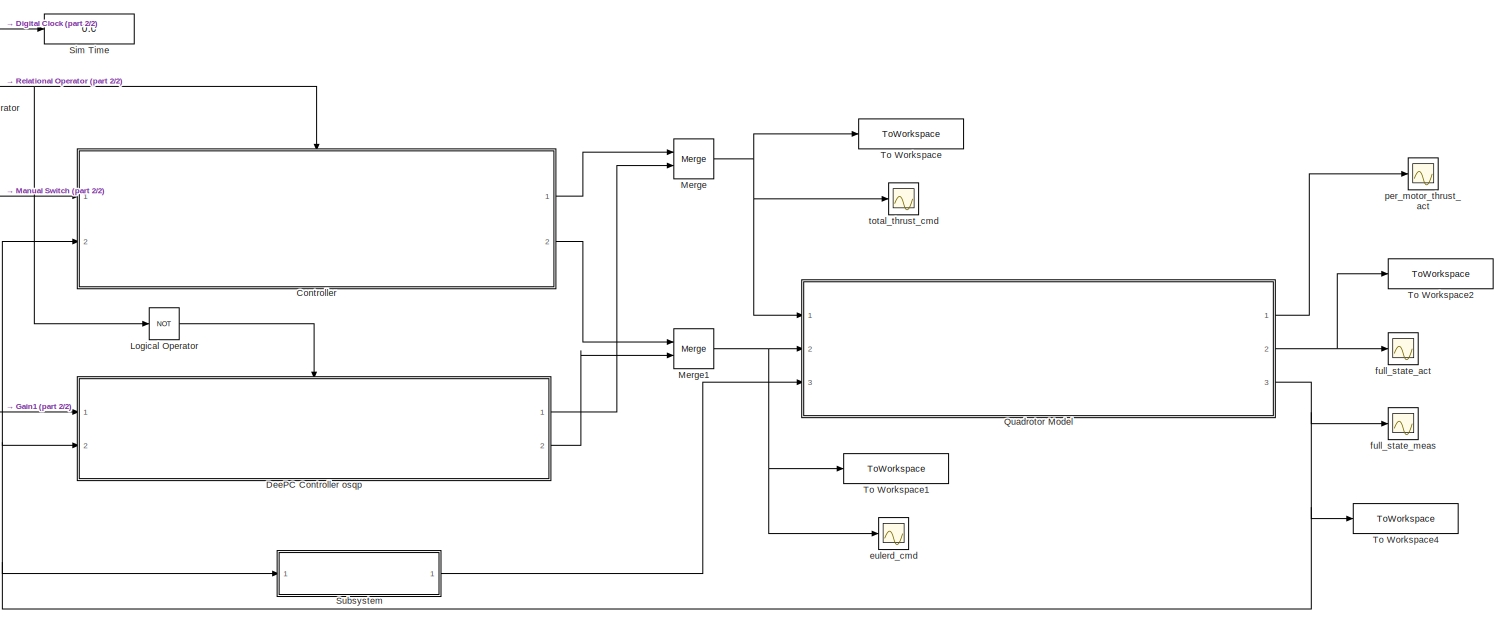
[diagram: root canvas - part 1/2, center side, full height]
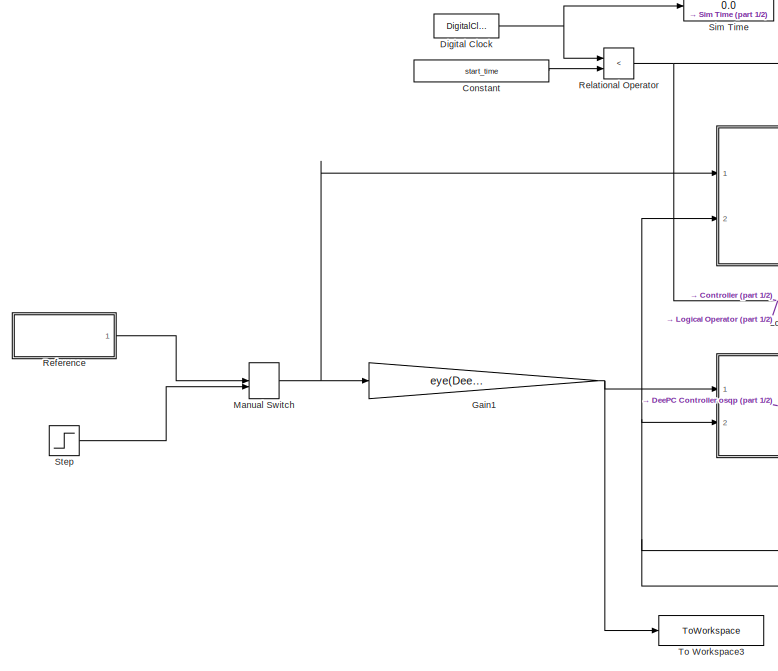
[diagram: root canvas - part 2/2, left side, full height]
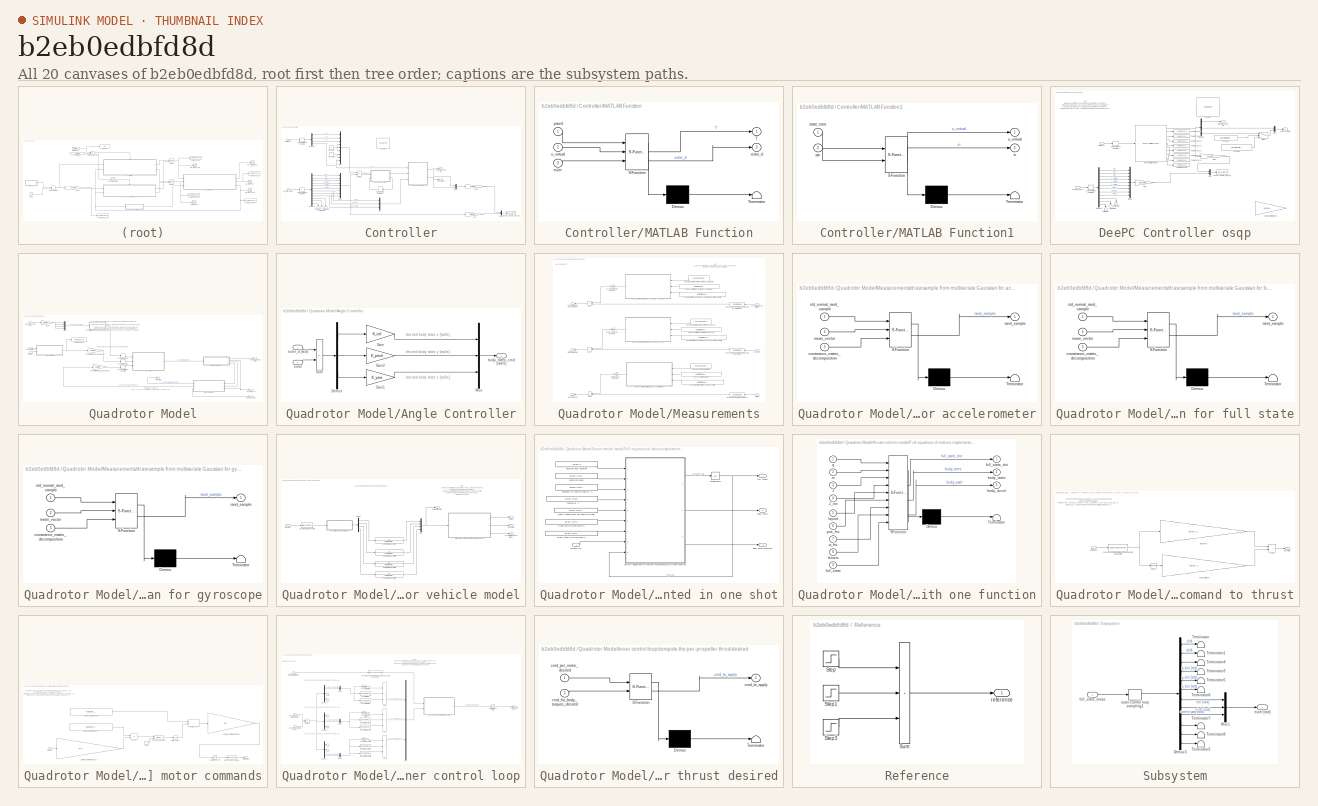
[diagram: thumbnail index - all 20 canvases of the model, root first then tree order]
MODEL slx_b2eb0edbfd8d
KIND model
CONFIG AbsTol = auto
CONFIG EnableMultiTasking = off
CONFIG FixedStep = auto
CONFIG MaxStep = auto
CONFIG MinStep = auto
CONFIG RelTol = 1e-3
CONFIG SampleTimeConstraint = Unconstrained
CONFIG SolverName = VariableStepAuto
CONFIG StartTime = 0.0
CONFIG StopTime = sim_time
BLOCK [Constant] Constant
  Value = start_time
BLOCK [SubSystem] Controller
  AncestorBlock = Crazyflie_Library/LQR_Controller
  Ports = [2, 2, 1]
  RequestExecContextInheritance = off
BLOCK [Constant] Controller/Constant
  Value = 0
BLOCK [Constant] Controller/Constant2
  Value = 0
BLOCK [MATLABFcn] Controller/DeePC_update_uini_yini
  MATLABFcn = DeePC_update_uini_yini
  OutputDimensions = 0
  Ports = [1]
BLOCK [Demux] Controller/Demux2
  Ports = [1, 4]
BLOCK [Demux] Controller/Demux3
  Outputs = 12
  Ports = [1, 12]
BLOCK [DiscreteIntegrator] Controller/Discrete-Time Integrator
  ICPrevOutput = DiscIntNeverNeededParam
  ICPrevScaledInput = DiscIntNeverNeededParam
  InitialCondition = [0;0;0]
  InitialConditionSetting = Auto
  NameLocation = top
  Ports = [1, 1]
  SampleTime = -1
BLOCK [EnablePort] Controller/Enable
  Ports = []
BLOCK [Gain] Controller/Gain
  Gain = param.Cd
  Multiplication = Matrix(K*u)
BLOCK [Gain] Controller/Gain1
  Gain = eye(param.m, 4)
  Multiplication = Matrix(K*u)
BLOCK [SubSystem] Controller/MATLAB Function
  ErrorFcn = Stateflow.Translate.translate
  PermitHierarchicalResolution = ExplicitOnly
  Ports = [3, 2]
  RequestExecContextInheritance = off
  SFBlockType = MATLAB Function
  TreatAsAtomicUnit = on
BLOCK [Demux] Controller/MATLAB Function/ Demux 
  Outputs = 1
  Ports = [1, 1]
BLOCK [S-Function] Controller/MATLAB Function/ SFunction 
  EnableBusSupport = on
  FunctionName = sf_sfun
  Parameters = accel_g,flag_input_transform_nonlinearity,mass
  PortCounts = [3 3]
  Ports = [3, 3]
  SFcnIsStateOwnerBlock = off
  SFunctionDeploymentMode = off
  Tag = Stateflow S-Function 6
BLOCK [Terminator] Controller/MATLAB Function/ Terminator 
BLOCK [Outport] Controller/MATLAB Function/T
BLOCK [Inport] Controller/MATLAB Function/euler
  Port = 3
BLOCK [Outport] Controller/MATLAB Function/euler_d
  Port = 2
BLOCK [Inport] Controller/MATLAB Function/u_virtual
  Port = 2
BLOCK [Inport] Controller/MATLAB Function/yawd
BLOCK [SubSystem] Controller/MATLAB Function1
  ErrorFcn = Stateflow.Translate.translate
  PermitHierarchicalResolution = ExplicitOnly
  Ports = [2, 2]
  RequestExecContextInheritance = off
  SFBlockType = MATLAB Function
  TreatAsAtomicUnit = on
BLOCK [Demux] Controller/MATLAB Function1/ Demux 
  Outputs = 1
  Ports = [1, 1]
BLOCK [S-Function] Controller/MATLAB Function1/ SFunction 
  EnableBusSupport = on
  FunctionName = sf_sfun
  Parameters = Ki_xy,Ki_z,Kp_xy,Kp_z,Kv_xy,Kv_z
  PortCounts = [2 3]
  Ports = [2, 3]
  SFcnIsStateOwnerBlock = off
  SFunctionDeploymentMode = off
  Tag = Stateflow S-Function 7
BLOCK [Terminator] Controller/MATLAB Function1/ Terminator 
BLOCK [Inport] Controller/MATLAB Function1/pp
  Port = 2
BLOCK [Inport] Controller/MATLAB Function1/state_error
BLOCK [Outport] Controller/MATLAB Function1/u_virtual
BLOCK [Outport] Controller/MATLAB Function1/xi
  Port = 2
BLOCK [Mux] Controller/Mux
  DisplayOption = bar
  Inputs = 3
  Ports = [3, 1]
BLOCK [Mux] Controller/Mux1
  DisplayOption = bar
  Inputs = 9
  Ports = [9, 1]
BLOCK [Mux] Controller/Mux10
  DisplayOption = bar
  Inputs = 2
  Ports = [2, 1]
BLOCK [Mux] Controller/Mux3
  DisplayOption = bar
  Inputs = 9
  Ports = [9, 1]
BLOCK [Mux] Controller/Mux9
  DisplayOption = bar
  Inputs = 2
  Ports = [2, 1]
BLOCK [Sum] Controller/Subtract
  IconShape = rectangular
  Inputs = +-
  Ports = [2, 1]
BLOCK [Terminator] Controller/Terminator
  NameLocation = left
BLOCK [Terminator] Controller/Terminator1
  NameLocation = left
BLOCK [Terminator] Controller/Terminator2
  NameLocation = left
BLOCK [Outport] Controller/euler_d [rad]
  Port = 2
BLOCK [Inport] Controller/full_state_meas
  Port = 2
BLOCK [ZeroOrderHold] Controller/outer control loop sampling
  SampleTime = param.sample_time_controller_outer
BLOCK [ZeroOrderHold] Controller/outer control loop sampling1
  SampleTime = param.sample_time_controller_outer
BLOCK [Inport] Controller/reference
BLOCK [Outport] Controller/total_thrust_cmd [N]
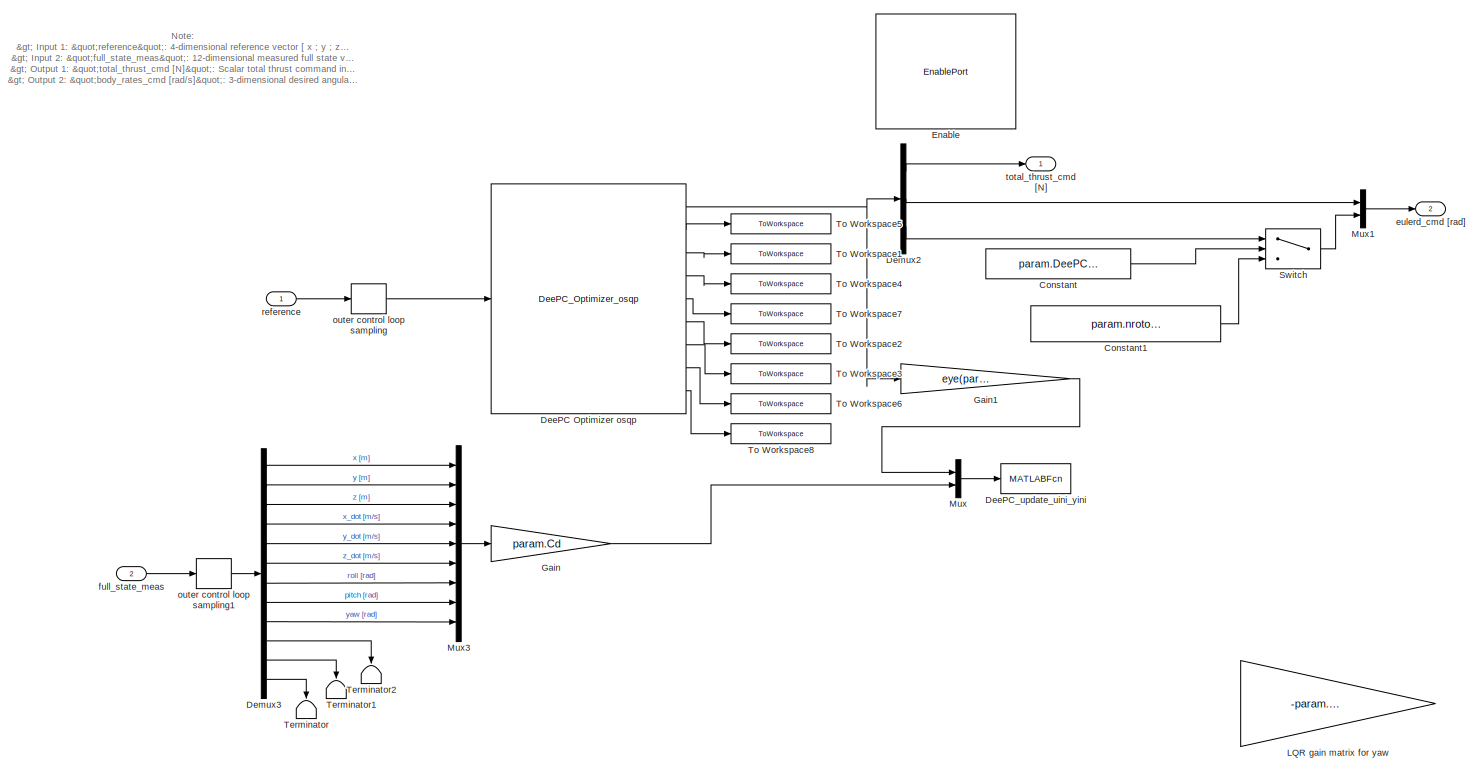
[diagram: DeePC Controller osqp - part 1/1, most of the canvas]
BLOCK [SubSystem] DeePC Controller osqp
  AncestorBlock = Crazyflie_Library/DeePC_Controller_osqp
  Ports = [2, 2, 1]
  RequestExecContextInheritance = off
BLOCK [Constant] DeePC Controller osqp/Constant
  Value = param.DeePC_yaw_control
BLOCK [Constant] DeePC Controller osqp/Constant1
  Value = param.nrotor_initial_condition(9)
BLOCK [Reference] DeePC Controller osqp/DeePC Optimizer osqp  REF=Crazyflie_Library/DeePC_Optimizer_osqp
  Ports = [1, 9]
  SourceBlock = Crazyflie_Library/DeePC_Optimizer_osqp
  SourceType = SubSystem
BLOCK [MATLABFcn] DeePC Controller osqp/DeePC_update_uini_yini
  MATLABFcn = DeePC_update_uini_yini
  OutputDimensions = 0
  Ports = [1]
BLOCK [Demux] DeePC Controller osqp/Demux2
  Outputs = [1 2 1]
  Ports = [1, 3]
BLOCK [Demux] DeePC Controller osqp/Demux3
  Outputs = 12
  Ports = [1, 12]
BLOCK [EnablePort] DeePC Controller osqp/Enable
  Ports = []
BLOCK [Gain] DeePC Controller osqp/Gain
  Gain = param.Cd
  Multiplication = Matrix(K*u)
BLOCK [Gain] DeePC Controller osqp/Gain1
  Gain = eye(param.m, 4)
  Multiplication = Matrix(K*u)
BLOCK [Gain] DeePC Controller osqp/LQR gain matrix for yaw
  Commented = on
  Gain = -param.K_lqr_outer_loop(4:9)
BLOCK [Mux] DeePC Controller osqp/Mux
  DisplayOption = bar
  Inputs = 2
  Ports = [2, 1]
BLOCK [Mux] DeePC Controller osqp/Mux1
  DisplayOption = bar
  Inputs = [2 1]
  Ports = [2, 1]
BLOCK [Mux] DeePC Controller osqp/Mux3
  DisplayOption = bar
  Inputs = 9
  Ports = [9, 1]
BLOCK [Switch] DeePC Controller osqp/Switch
  Criteria = u2 ~= 0
  InputSameDT = off
  SaturateOnIntegerOverflow = off
BLOCK [Terminator] DeePC Controller osqp/Terminator
  NameLocation = left
BLOCK [Terminator] DeePC Controller osqp/Terminator1
  NameLocation = left
BLOCK [Terminator] DeePC Controller osqp/Terminator2
  NameLocation = left
BLOCK [ToWorkspace] DeePC Controller osqp/To Workspace1
  FixptAsFi = on
  MaxDataPoints = inf
  Ports = [1]
  SampleTime = -1
  VariableName = sigma_out
BLOCK [ToWorkspace] DeePC Controller osqp/To Workspace2
  FixptAsFi = on
  MaxDataPoints = inf
  Ports = [1]
  SampleTime = -1
  VariableName = g_perf_out
BLOCK [ToWorkspace] DeePC Controller osqp/To Workspace3
  FixptAsFi = on
  MaxDataPoints = inf
  Ports = [1]
  SampleTime = -1
  VariableName = sigma_perf_out
BLOCK [ToWorkspace] DeePC Controller osqp/To Workspace4
  FixptAsFi = on
  MaxDataPoints = inf
  Ports = [1]
  SampleTime = -1
  VariableName = cost_out
BLOCK [ToWorkspace] DeePC Controller osqp/To Workspace5
  FixptAsFi = on
  MaxDataPoints = inf
  Ports = [1]
  SampleTime = -1
  VariableName = g_out
BLOCK [ToWorkspace] DeePC Controller osqp/To Workspace6
  FixptAsFi = on
  MaxDataPoints = inf
  Ports = [1]
  SampleTime = -1
  VariableName = cost_perf_out
BLOCK [ToWorkspace] DeePC Controller osqp/To Workspace7
  FixptAsFi = on
  MaxDataPoints = inf
  Ports = [1]
  SampleTime = -1
  VariableName = solve_time_out
BLOCK [ToWorkspace] DeePC Controller osqp/To Workspace8
  FixptAsFi = on
  MaxDataPoints = inf
  Ports = [1]
  SampleTime = -1
  VariableName = solve_time_perf_out
BLOCK [Outport] DeePC Controller osqp/eulerd_cmd [rad]
  Port = 2
  VectorParamsAs1DForOutWhenUnconnected = off
BLOCK [Inport] DeePC Controller osqp/full_state_meas
  Port = 2
BLOCK [ZeroOrderHold] DeePC Controller osqp/outer control loop sampling
  SampleTime = param.sample_time_controller_outer
BLOCK [ZeroOrderHold] DeePC Controller osqp/outer control loop sampling1
  SampleTime = param.sample_time_controller_outer
BLOCK [Inport] DeePC Controller osqp/reference
BLOCK [Outport] DeePC Controller osqp/total_thrust_cmd [N]
  VectorParamsAs1DForOutWhenUnconnected = off
BLOCK [DigitalClock] Digital Clock
  SampleTime = param.sample_time_controller_outer
BLOCK [Gain] Gain1
  Gain = eye(DeePC_param.Nref, 4)
  Multiplication = Matrix(K*u)
BLOCK [Logic] Logical Operator
  AllPortsSameDT = off
  Operator = NOT
  OutDataTypeStr = boolean
  Ports = [1, 1]
BLOCK [ManualSwitch] Manual Switch
  CurrentSetting = 0
BLOCK [Merge] Merge
  Ports = [2, 1]
BLOCK [Merge] Merge1
  Ports = [2, 1]
BLOCK [SubSystem] Quadrotor Model
  Ports = [3, 3]
  RequestExecContextInheritance = off
BLOCK [SubSystem] Quadrotor Model/Angle Controller
  Ports = [2, 1]
  RequestExecContextInheritance = off
BLOCK [Demux] Quadrotor Model/Angle Controller/Demux
  Outputs = 3
  Ports = [1, 3]
BLOCK [Gain] Quadrotor Model/Angle Controller/Gain
  Gain = K_roll
  Multiplication = Matrix(K*u)
BLOCK [Gain] Quadrotor Model/Angle Controller/Gain1
  Gain = K_yaw
  Multiplication = Matrix(K*u)
BLOCK [Gain] Quadrotor Model/Angle Controller/Gain2
  Gain = K_pitch
  Multiplication = Matrix(K*u)
BLOCK [Mux] Quadrotor Model/Angle Controller/Mux
  DisplayOption = bar
  Inputs = 3
  Ports = [3, 1]
BLOCK [Sum] Quadrotor Model/Angle Controller/Sum
  IconShape = rectangular
  Inputs = +-
  Ports = [2, 1]
BLOCK [Outport] Quadrotor Model/Angle Controller/body_rates_cmd [rad//s]
BLOCK [Inport] Quadrotor Model/Angle Controller/euler
  Port = 2
BLOCK [Inport] Quadrotor Model/Angle Controller/euler_d [rad]
BLOCK [Gain] Quadrotor Model/Convert from radians to degrees
  Gain = param.rad2deg
BLOCK [Gain] Quadrotor Model/Convert from radians to degrees1
  Gain = param.rad2deg
BLOCK [Gain] Quadrotor Model/Gain
  Gain = 1/param.nu
BLOCK [SubSystem] Quadrotor Model/Measurements
  Ports = [3, 3]
  RequestExecContextInheritance = off
BLOCK [Constant] Quadrotor Model/Measurements/"square root" of the body frame accelerometer covariance matrix
  Value = param.measurement_noise_accelerometer_covariance_decomposition
BLOCK [Constant] Quadrotor Model/Measurements/"square root" of the body frame gyroscope covariance matrix
  Value = param.measurement_noise_gyroscope_covariance_decomposition
BLOCK [Constant] Quadrotor Model/Measurements/"square root" of the full state covariance matrix
  Value = param.measurement_noise_full_state_covariance_decomposition
BLOCK [Sum] Quadrotor Model/Measurements/Add
  IconShape = rectangular
  Ports = [2, 1]
BLOCK [Sum] Quadrotor Model/Measurements/Add1
  IconShape = rectangular
  Ports = [2, 1]
BLOCK [Sum] Quadrotor Model/Measurements/Add2
  IconShape = rectangular
  Ports = [2, 1]
BLOCK [Inport] Quadrotor Model/Measurements/acceleration (body frame)
BLOCK [Outport] Quadrotor Model/Measurements/accelerometer measurements
  VectorParamsAs1DForOutWhenUnconnected = off
BLOCK [Gain] Quadrotor Model/Measurements/accelometer noise inclusion
  Gain = param.measurement_noise_body_accelerations
BLOCK [Inport] Quadrotor Model/Measurements/body rates
  Port = 2
BLOCK [SubSystem] Quadrotor Model/Measurements/draw sample from multivariate Gaussian for accelerometer
  ErrorFcn = Stateflow.Translate.translate
  PermitHierarchicalResolution = ExplicitOnly
  Ports = [3, 1]
  RequestExecContextInheritance = off
  SFBlockType = MATLAB Function
  TreatAsAtomicUnit = on
BLOCK [Demux] Quadrotor Model/Measurements/draw sample from multivariate Gaussian for accelerometer/ Demux 
  Outputs = 1
  Ports = [1, 1]
BLOCK [S-Function] Quadrotor Model/Measurements/draw sample from multivariate Gaussian for accelerometer/ SFunction 
  EnableBusSupport = on
  FunctionName = sf_sfun
  PortCounts = [3 2]
  Ports = [3, 2]
  SFcnIsStateOwnerBlock = off
  SFunctionDeploymentMode = off
  Tag = Stateflow S-Function 3
BLOCK [Terminator] Quadrotor Model/Measurements/draw sample from multivariate Gaussian for accelerometer/ Terminator 
BLOCK [Inport] Quadrotor Model/Measurements/draw sample from multivariate Gaussian for accelerometer/covariance_matrix_decomposition
  Port = 3
BLOCK [Inport] Quadrotor Model/Measurements/draw sample from multivariate Gaussian for accelerometer/mean_vector
  Port = 2
BLOCK [Outport] Quadrotor Model/Measurements/draw sample from multivariate Gaussian for accelerometer/rand_sample
  VectorParamsAs1DForOutWhenUnconnected = off
BLOCK [Inport] Quadrotor Model/Measurements/draw sample from multivariate Gaussian for accelerometer/std_normal_rand_sample
BLOCK [SubSystem] Quadrotor Model/Measurements/draw sample from multivariate Gaussian for full state
  ErrorFcn = Stateflow.Translate.translate
  PermitHierarchicalResolution = ExplicitOnly
  Ports = [3, 1]
  RequestExecContextInheritance = off
  SFBlockType = MATLAB Function
  TreatAsAtomicUnit = on
BLOCK [Demux] Quadrotor Model/Measurements/draw sample from multivariate Gaussian for full state/ Demux 
  Outputs = 1
  Ports = [1, 1]
BLOCK [S-Function] Quadrotor Model/Measurements/draw sample from multivariate Gaussian for full state/ SFunction 
  EnableBusSupport = on
  FunctionName = sf_sfun
  PortCounts = [3 2]
  Ports = [3, 2]
  SFcnIsStateOwnerBlock = off
  SFunctionDeploymentMode = off
  Tag = Stateflow S-Function 4
BLOCK [Terminator] Quadrotor Model/Measurements/draw sample from multivariate Gaussian for full state/ Terminator 
BLOCK [Inport] Quadrotor Model/Measurements/draw sample from multivariate Gaussian for full state/covariance_matrix_decomposition
  Port = 3
BLOCK [Inport] Quadrotor Model/Measurements/draw sample from multivariate Gaussian for full state/mean_vector
  Port = 2
BLOCK [Outport] Quadrotor Model/Measurements/draw sample from multivariate Gaussian for full state/rand_sample
  VectorParamsAs1DForOutWhenUnconnected = off
BLOCK [Inport] Quadrotor Model/Measurements/draw sample from multivariate Gaussian for full state/std_normal_rand_sample
BLOCK [SubSystem] Quadrotor Model/Measurements/draw sample from multivariate Gaussian for gyroscope
  ErrorFcn = Stateflow.Translate.translate
  PermitHierarchicalResolution = ExplicitOnly
  Ports = [3, 1]
  RequestExecContextInheritance = off
  SFBlockType = MATLAB Function
  TreatAsAtomicUnit = on
BLOCK [Demux] Quadrotor Model/Measurements/draw sample from multivariate Gaussian for gyroscope/ Demux 
  Outputs = 1
  Ports = [1, 1]
BLOCK [S-Function] Quadrotor Model/Measurements/draw sample from multivariate Gaussian for gyroscope/ SFunction 
  EnableBusSupport = on
  FunctionName = sf_sfun
  PortCounts = [3 2]
  Ports = [3, 2]
  SFcnIsStateOwnerBlock = off
  SFunctionDeploymentMode = off
  Tag = Stateflow S-Function 5
BLOCK [Terminator] Quadrotor Model/Measurements/draw sample from multivariate Gaussian for gyroscope/ Terminator 
BLOCK [Inport] Quadrotor Model/Measurements/draw sample from multivariate Gaussian for gyroscope/covariance_matrix_decomposition
  Port = 3
BLOCK [Inport] Quadrotor Model/Measurements/draw sample from multivariate Gaussian for gyroscope/mean_vector
  Port = 2
BLOCK [Outport] Quadrotor Model/Measurements/draw sample from multivariate Gaussian for gyroscope/rand_sample
  VectorParamsAs1DForOutWhenUnconnected = off
BLOCK [Inport] Quadrotor Model/Measurements/draw sample from multivariate Gaussian for gyroscope/std_normal_rand_sample
BLOCK [Inport] Quadrotor Model/Measurements/full state
  Port = 3
BLOCK [Outport] Quadrotor Model/Measurements/full state measurements
  Port = 3
  VectorParamsAs1DForOutWhenUnconnected = off
BLOCK [Gain] Quadrotor Model/Measurements/full state noise inclusion
  Gain = param.measurement_noise_full_state
BLOCK [Outport] Quadrotor Model/Measurements/gyroscope measurements
  Port = 2
  VectorParamsAs1DForOutWhenUnconnected = off
BLOCK [Gain] Quadrotor Model/Measurements/gyroscope noise inclusion
  Gain = param.measurement_noise_body_rates
BLOCK [Constant] Quadrotor Model/Measurements/mean vector for the body frame accelerometer
  Value = param.measurement_noise_accelerometer_mean
BLOCK [Constant] Quadrotor Model/Measurements/mean vector for the body frame gyroscope
  Value = param.measurement_noise_gyroscope_mean
BLOCK [Constant] Quadrotor Model/Measurements/mean vector for the full state
  Value = param.measurement_noise_full_state_mean
BLOCK [ZeroOrderHold] Quadrotor Model/Measurements/measurement sampling > for Vicon
  SampleTime = param.sample_time_measurements_full_state
BLOCK [ZeroOrderHold] Quadrotor Model/Measurements/measurement sampling > for on-board accelerometer
  SampleTime = param.sample_time_measurements_body_accelerations
BLOCK [ZeroOrderHold] Quadrotor Model/Measurements/measurement sampling > for on-board gyroscope
  SampleTime = param.sample_time_measurements_body_rates
BLOCK [RandomNumber] Quadrotor Model/Measurements/standard normal rand for body frame accelometer
  Mean = zeros(size(param.measurement_noise_accelerometer_mean))
  SampleTime = param.sample_time_measurements_body_accelerations
  Seed = param.measurement_noise_accelerometer_seed
  Variance = ones(size(param.measurement_noise_accelerometer_mean))
  VectorParams1D = off
BLOCK [RandomNumber] Quadrotor Model/Measurements/standard normal rand for body frame gyroscope
  Mean = zeros(size(param.measurement_noise_gyroscope_mean))
  SampleTime = param.sample_time_measurements_body_rates
  Seed = param.measurement_noise_gyroscope_seed
  Variance = ones(size(param.measurement_noise_gyroscope_mean))
  VectorParams1D = off
BLOCK [RandomNumber] Quadrotor Model/Measurements/standard normal rand for full state
  Mean = zeros(size(param.measurement_noise_full_state_mean))
  SampleTime = param.sample_time_measurements_full_state
  Seed = param.measurement_noise_full_state_seed
  Variance = ones(size(param.measurement_noise_full_state_mean))
  VectorParams1D = off
BLOCK [Mux] Quadrotor Model/Mux
  DisplayOption = bar
  Inputs = param.nu
  Ports = [4, 1]
BLOCK [SubSystem] Quadrotor Model/N-rotor vehicle model
  Ports = [1, 4]
  RequestExecContextInheritance = off
BLOCK [TransferFcn] Quadrotor Model/N-rotor vehicle model/DC motor low pass filter
  Denominator = [param.nrotor_tau_M 1]
BLOCK [TransferFcn] Quadrotor Model/N-rotor vehicle model/DC motor low pass filter1
  Denominator = [param.nrotor_tau_M 1]
BLOCK [TransferFcn] Quadrotor Model/N-rotor vehicle model/DC motor low pass filter2
  Denominator = [param.nrotor_tau_M 1]
BLOCK [TransferFcn] Quadrotor Model/N-rotor vehicle model/DC motor low pass filter3
  Denominator = [param.nrotor_tau_M 1]
BLOCK [Demux] Quadrotor Model/N-rotor vehicle model/Demux
  Ports = [1, 4]
BLOCK [SubSystem] Quadrotor Model/N-rotor vehicle model/Full equations of motions implemented in one shot
  Ports = [1, 3]
  RequestExecContextInheritance = off
BLOCK [Constant] Quadrotor Model/N-rotor vehicle model/Full equations of motions implemented in one shot/Body rates friction matrix
  Value = param.nrotor_vehicle_body_rates_friction
BLOCK [Integrator] Quadrotor Model/N-rotor vehicle model/Full equations of motions implemented in one shot/Integrator5
  InitialCondition = param.nrotor_initial_condition
  Ports = [1, 1]
BLOCK [Constant] Quadrotor Model/N-rotor vehicle model/Full equations of motions implemented in one shot/Inverse of J
  Value = param.nrotor_vehicle_inertia_inverse
BLOCK [Constant] Quadrotor Model/N-rotor vehicle model/Full equations of motions implemented in one shot/Matrix describing the vehicle layout
  Value = param.nrotor_vehicle_layout_true
BLOCK [Constant] Quadrotor Model/N-rotor vehicle model/Full equations of motions implemented in one shot/Moment of inertia matrix, J
  Value = param.nrotor_vehicle_inertia
BLOCK [Constant] Quadrotor Model/N-rotor vehicle model/Full equations of motions implemented in one shot/Position friction matrix
  Value = param.nrotor_vehicle_position_friction
BLOCK [SubSystem] Quadrotor Model/N-rotor vehicle model/Full equations of motions implemented in one shot/The full equations of motion implemented with one function
  ErrorFcn = Stateflow.Translate.translate
  PermitHierarchicalResolution = ExplicitOnly
  Ports = [9, 3]
  RequestExecContextInheritance = off
  SFBlockType = MATLAB Function
  TreatAsAtomicUnit = on
BLOCK [Demux] Quadrotor Model/N-rotor vehicle model/Full equations of motions implemented in one shot/The full equations of motion implemented with one function/ Demux 
  Outputs = 1
  Ports = [1, 1]
BLOCK [S-Function] Quadrotor Model/N-rotor vehicle model/Full equations of motions implemented in one shot/The full equations of motion implemented with one function/ SFunction 
  EnableBusSupport = on
  FunctionName = sf_sfun
  PortCounts = [9 4]
  Ports = [9, 4]
  SFcnIsStateOwnerBlock = off
  SFunctionDeploymentMode = off
  Tag = Stateflow S-Function 1
BLOCK [Terminator] Quadrotor Model/N-rotor vehicle model/Full equations of motions implemented in one shot/The full equations of motion implemented with one function/ Terminator 
BLOCK [Inport] Quadrotor Model/N-rotor vehicle model/Full equations of motions implemented in one shot/The full equations of motion implemented with one function/J
  Port = 3
BLOCK [Inport] Quadrotor Model/N-rotor vehicle model/Full equations of motions implemented in one shot/The full equations of motion implemented with one function/J_inv
  Port = 4
BLOCK [Outport] Quadrotor Model/N-rotor vehicle model/Full equations of motions implemented in one shot/The full equations of motion implemented with one function/body_accel
  Port = 3
  VectorParamsAs1DForOutWhenUnconnected = off
BLOCK [Outport] Quadrotor Model/N-rotor vehicle model/Full equations of motions implemented in one shot/The full equations of motion implemented with one function/body_rates
  Port = 2
  VectorParamsAs1DForOutWhenUnconnected = off
BLOCK [Inport] Quadrotor Model/N-rotor vehicle model/Full equations of motions implemented in one shot/The full equations of motion implemented with one function/full_state
  Port = 9
BLOCK [Outport] Quadrotor Model/N-rotor vehicle model/Full equations of motions implemented in one shot/The full equations of motion implemented with one function/full_state_dot
  VectorParamsAs1DForOutWhenUnconnected = off
BLOCK [Inport] Quadrotor Model/N-rotor vehicle model/Full equations of motions implemented in one shot/The full equations of motion implemented with one function/g
BLOCK [Inport] Quadrotor Model/N-rotor vehicle model/Full equations of motions implemented in one shot/The full equations of motion implemented with one function/layout
  Port = 5
BLOCK [Inport] Quadrotor Model/N-rotor vehicle model/Full equations of motions implemented in one shot/The full equations of motion implemented with one function/m
  Port = 2
BLOCK [Inport] Quadrotor Model/N-rotor vehicle model/Full equations of motions implemented in one shot/The full equations of motion implemented with one function/pos_fric
  Port = 6
BLOCK [Inport] Quadrotor Model/N-rotor vehicle model/Full equations of motions implemented in one shot/The full equations of motion implemented with one function/thrusts
  Port = 8
BLOCK [Inport] Quadrotor Model/N-rotor vehicle model/Full equations of motions implemented in one shot/The full equations of motion implemented with one function/w_fric
  Port = 7
BLOCK [Outport] Quadrotor Model/N-rotor vehicle model/Full equations of motions implemented in one shot/body accellerations
  Port = 3
  VectorParamsAs1DForOutWhenUnconnected = off
BLOCK [Outport] Quadrotor Model/N-rotor vehicle model/Full equations of motions implemented in one shot/body rates
  Port = 2
  VectorParamsAs1DForOutWhenUnconnected = off
BLOCK [Outport] Quadrotor Model/N-rotor vehicle model/Full equations of motions implemented in one shot/full state
  VectorParamsAs1DForOutWhenUnconnected = off
BLOCK [Constant] Quadrotor Model/N-rotor vehicle model/Full equations of motions implemented in one shot/graviational constant
  Value = param.g
BLOCK [Inport] Quadrotor Model/N-rotor vehicle model/Full equations of motions implemented in one shot/thrusts [N]
BLOCK [Constant] Quadrotor Model/N-rotor vehicle model/Full equations of motions implemented in one shot/vehicle's mass
  Value = param.nrotor_vehicle_mass_true
BLOCK [Mux] Quadrotor Model/N-rotor vehicle model/Mux
  DisplayOption = bar
  Ports = [4, 1]
BLOCK [Outport] Quadrotor Model/N-rotor vehicle model/accelerations (body frame)
  Port = 4
  VectorParamsAs1DForOutWhenUnconnected = off
BLOCK [Outport] Quadrotor Model/N-rotor vehicle model/body rates
  Port = 3
  VectorParamsAs1DForOutWhenUnconnected = off
BLOCK [SubSystem] Quadrotor Model/N-rotor vehicle model/convert motor comand to thrust
  Ports = [1, 1]
  RequestExecContextInheritance = off
BLOCK [Sum] Quadrotor Model/N-rotor vehicle model/convert motor comand to thrust/Add
  IconShape = rectangular
  Ports = [2, 1]
BLOCK [Inport] Quadrotor Model/N-rotor vehicle model/convert motor comand to thrust/cmd [uint16]
BLOCK [Math] Quadrotor Model/N-rotor vehicle model/convert motor comand to thrust/cmd^2
  Operator = square
  Ports = [1, 1]
  SignedPower = on
BLOCK [DataTypeConversion] Quadrotor Model/N-rotor vehicle model/convert motor comand to thrust/convert back to double to avoid unexpected data casting
  OutDataTypeStr = double
  RndMeth = Floor
  SaturateOnIntegerOverflow = off
BLOCK [Gain] Quadrotor Model/N-rotor vehicle model/convert motor comand to thrust/linear term
  Gain = param.nrotor_vehicle_thrust_max .* param.cmd_2_newtons_conversion_linear_coefficient
BLOCK [Gain] Quadrotor Model/N-rotor vehicle model/convert motor comand to thrust/quadratic term
  Gain = param.nrotor_vehicle_thrust_max .* param.cmd_2_newtons_conversion_quadratic_coefficient
BLOCK [Outport] Quadrotor Model/N-rotor vehicle model/convert motor comand to thrust/thrust [N]
  VectorParamsAs1DForOutWhenUnconnected = off
BLOCK [DataTypeConversion] Quadrotor Model/N-rotor vehicle model/ensure data type is unit16
  OutDataTypeStr = uint16
  RndMeth = Floor
  SaturateOnIntegerOverflow = off
BLOCK [Outport] Quadrotor Model/N-rotor vehicle model/full state
  Port = 2
  VectorParamsAs1DForOutWhenUnconnected = off
BLOCK [Outport] Quadrotor Model/N-rotor vehicle model/per motor thrust [N]
  VectorParamsAs1DForOutWhenUnconnected = off
BLOCK [Inport] Quadrotor Model/N-rotor vehicle model/thrusts [N]
BLOCK [Terminator] Quadrotor Model/Terminator1
BLOCK [ToWorkspace] Quadrotor Model/To Workspace1
  FixptAsFi = on
  MaxDataPoints = inf
  Ports = [1]
  SampleTime = param.sample_time_controller_outer
  VariableName = body_rates_cmd
BLOCK [ZeroOrderHold] Quadrotor Model/Zero-Order Hold1
  SampleTime = param.sample_time_controller_inner
BLOCK [ZeroOrderHold] Quadrotor Model/Zero-Order Hold2
  SampleTime = param.sample_time_controller_inner
BLOCK [SubSystem] Quadrotor Model/convert thrust [N] to [uint16] motor commands
  Ports = [1, 1]
  RequestExecContextInheritance = off
BLOCK [Sum] Quadrotor Model/convert thrust [N] to [uint16] motor commands/-b + sqrt(b^2 - 4ac))
  IconShape = rectangular
  Ports = [2, 1]
BLOCK [DataTypeConversion] Quadrotor Model/convert thrust [N] to [uint16] motor commands/Data Type Conversion
  OutDataTypeStr = uint16
  RndMeth = Floor
  SaturateOnIntegerOverflow = off
BLOCK [Saturate] Quadrotor Model/convert thrust [N] to [uint16] motor commands/Saturation on cmd
  LowerLimit = param.cmd_min
  UpperLimit = param.cmd_max
  ZeroCross = off
BLOCK [Sum] Quadrotor Model/convert thrust [N] to [uint16] motor commands/b^2 - 4ac
  IconShape = rectangular
  Inputs = +-
  Ports = [2, 1]
BLOCK [Outport] Quadrotor Model/convert thrust [N] to [uint16] motor commands/cmd [uint16]
  VectorParamsAs1DForOutWhenUnconnected = off
BLOCK [MinMax] Quadrotor Model/convert thrust [N] to [uint16] motor commands/ensure non-negative
  Function = max
  Inputs = 2
  Ports = [2, 1]
BLOCK [Constant] Quadrotor Model/convert thrust [N] to [uint16] motor commands/part of quadratic formula: "-b"
  Value = -param.cmd_2_newtons_conversion_linear_coefficient
BLOCK [Gain] Quadrotor Model/convert thrust [N] to [uint16] motor commands/part of quadratic formula: "1//(2a)"
  Gain = 1 / ( 2 * param.cmd_2_newtons_conversion_quadratic_coefficient )
BLOCK [Gain] Quadrotor Model/convert thrust [N] to [uint16] motor commands/part of quadratic formula: "4ac"
  Gain = -(4 * param.cmd_2_newtons_conversion_quadratic_coefficient) ./ param.nrotor_vehicle_thrust_max
BLOCK [Constant] Quadrotor Model/convert thrust [N] to [uint16] motor commands/part of quadratic formula: "b^2"
  Value = param.cmd_2_newtons_conversion_linear_coefficient^2
BLOCK [Sqrt] Quadrotor Model/convert thrust [N] to [uint16] motor commands/sqrt(b^2 - 4ac))
BLOCK [Inport] Quadrotor Model/convert thrust [N] to [uint16] motor commands/thrust [N]
BLOCK [Constant] Quadrotor Model/convert thrust [N] to [uint16] motor commands/zero
  Value = 0
BLOCK [Inport] Quadrotor Model/euler [rad]
  Port = 3
BLOCK [Inport] Quadrotor Model/euler_d [rad]
  Port = 2
BLOCK [Outport] Quadrotor Model/full_state_act
  Port = 2
  VectorParamsAs1DForOutWhenUnconnected = off
BLOCK [Outport] Quadrotor Model/full_state_meas
  Port = 3
  VectorParamsAs1DForOutWhenUnconnected = off
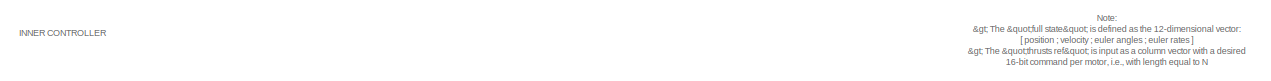
[diagram: Quadrotor Model/inner control loop - part 1/3, top left region]
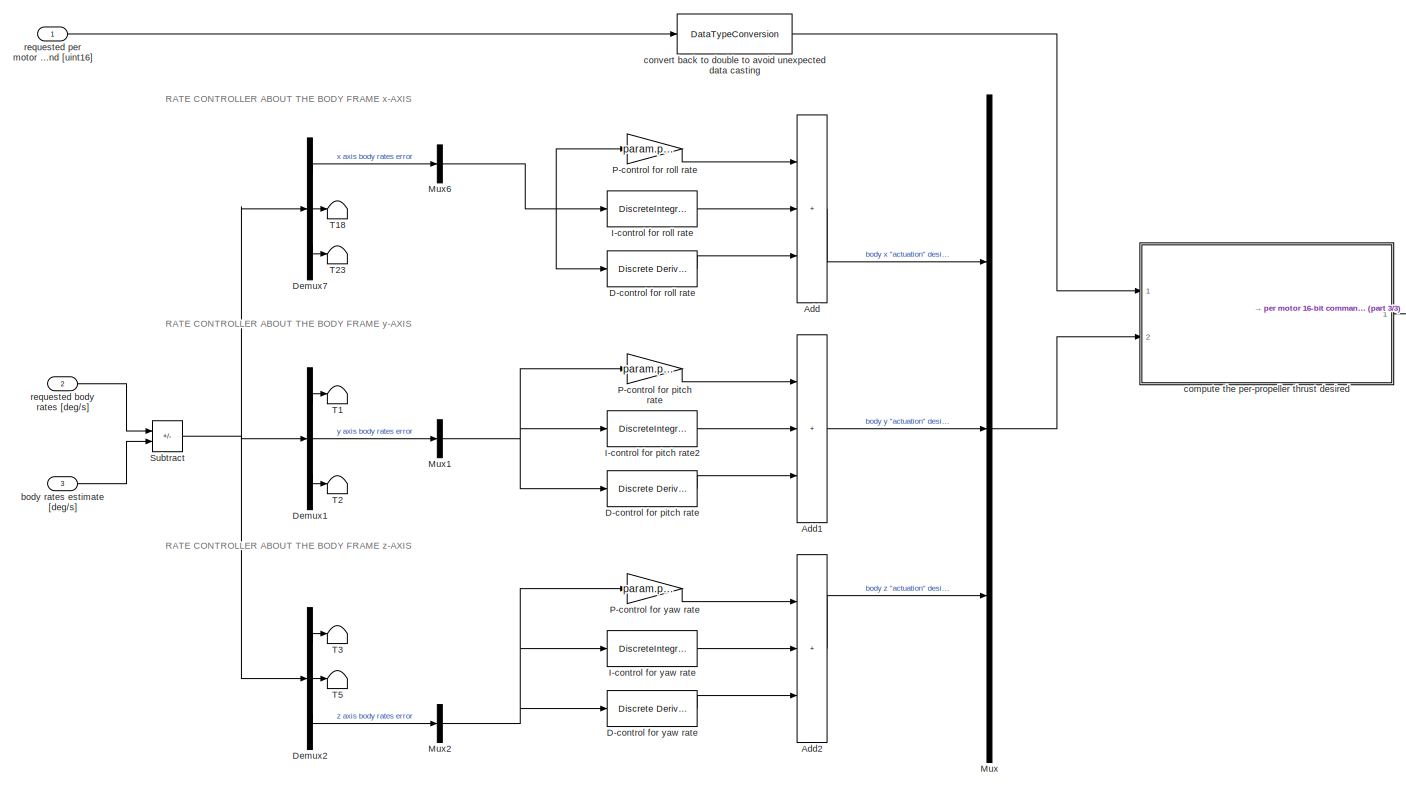
[diagram: Quadrotor Model/inner control loop - part 2/3, center side, full height]
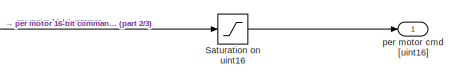
[diagram: Quadrotor Model/inner control loop - part 3/3, middle right region]
BLOCK [SubSystem] Quadrotor Model/inner control loop
  Ports = [3, 1]
  RequestExecContextInheritance = off
BLOCK [ZeroOrderHold] Quadrotor Model/inner control loop sampling
  SampleTime = param.sample_time_controller_inner
BLOCK [Sum] Quadrotor Model/inner control loop/Add
  IconShape = rectangular
  Inputs = +++
  Ports = [3, 1]
BLOCK [Sum] Quadrotor Model/inner control loop/Add1
  IconShape = rectangular
  Inputs = +++
  Ports = [3, 1]
BLOCK [Sum] Quadrotor Model/inner control loop/Add2
  IconShape = rectangular
  Inputs = +++
  Ports = [3, 1]
BLOCK [Reference] Quadrotor Model/inner control loop/D-control for pitch rate  REF=simulink/Discrete/Discrete Derivative
  Ports = [1, 1]
  SourceBlock = simulink/Discrete/Discrete Derivative
  SourceProductBaseCode = SL
  SourceType = Discrete Derivative
BLOCK [Reference] Quadrotor Model/inner control loop/D-control for roll rate  REF=simulink/Discrete/Discrete Derivative
  Ports = [1, 1]
  SourceBlock = simulink/Discrete/Discrete Derivative
  SourceProductBaseCode = SL
  SourceType = Discrete Derivative
BLOCK [Reference] Quadrotor Model/inner control loop/D-control for yaw rate  REF=simulink/Discrete/Discrete Derivative
  Ports = [1, 1]
  SourceBlock = simulink/Discrete/Discrete Derivative
  SourceProductBaseCode = SL
  SourceType = Discrete Derivative
BLOCK [Demux] Quadrotor Model/inner control loop/Demux1
  Outputs = 3
  Ports = [1, 3]
BLOCK [Demux] Quadrotor Model/inner control loop/Demux2
  Outputs = 3
  Ports = [1, 3]
BLOCK [Demux] Quadrotor Model/inner control loop/Demux7
  Outputs = 3
  Ports = [1, 3]
BLOCK [DiscreteIntegrator] Quadrotor Model/inner control loop/I-control for pitch rate2
  ICPrevOutput = DiscIntNeverNeededParam
  ICPrevScaledInput = DiscIntNeverNeededParam
  InitialConditionSetting = Auto
  LimitOutput = on
  LowerSaturationLimit = -param.pid_y_body_rate_integrator_limit
  Ports = [1, 1]
  SampleTime = -1
  UpperSaturationLimit = param.pid_y_body_rate_integrator_limit
  gainval = param.pid_y_body_rate_ki
BLOCK [DiscreteIntegrator] Quadrotor Model/inner control loop/I-control for roll rate
  ICPrevOutput = DiscIntNeverNeededParam
  ICPrevScaledInput = DiscIntNeverNeededParam
  InitialConditionSetting = Auto
  LimitOutput = on
  LowerSaturationLimit = -param.pid_x_body_rate_integrator_limit
  Ports = [1, 1]
  SampleTime = -1
  UpperSaturationLimit = param.pid_x_body_rate_integrator_limit
  gainval = param.pid_x_body_rate_ki
BLOCK [DiscreteIntegrator] Quadrotor Model/inner control loop/I-control for yaw rate
  ICPrevOutput = DiscIntNeverNeededParam
  ICPrevScaledInput = DiscIntNeverNeededParam
  InitialConditionSetting = Auto
  LimitOutput = on
  LowerSaturationLimit = -param.pid_x_body_rate_integrator_limit
  Ports = [1, 1]
  SampleTime = -1
  UpperSaturationLimit = param.pid_x_body_rate_integrator_limit
  gainval = param.pid_z_body_rate_ki
BLOCK [Mux] Quadrotor Model/inner control loop/Mux
  DisplayOption = bar
  Inputs = 3
  Ports = [3, 1]
BLOCK [Mux] Quadrotor Model/inner control loop/Mux1
  DisplayOption = bar
  Inputs = 1
  Ports = [1, 1]
BLOCK [Mux] Quadrotor Model/inner control loop/Mux2
  DisplayOption = bar
  Inputs = 1
  Ports = [1, 1]
BLOCK [Mux] Quadrotor Model/inner control loop/Mux6
  DisplayOption = bar
  Inputs = 1
  Ports = [1, 1]
BLOCK [Gain] Quadrotor Model/inner control loop/P-control for pitch rate
  Gain = param.pid_y_body_rate_kp
BLOCK [Gain] Quadrotor Model/inner control loop/P-control for roll rate
  Gain = param.pid_x_body_rate_kp
BLOCK [Gain] Quadrotor Model/inner control loop/P-control for yaw rate
  Gain = param.pid_z_body_rate_kp
BLOCK [Saturate] Quadrotor Model/inner control loop/Saturation on uint16
  LowerLimit = param.cmd_min
  UpperLimit = param.cmd_max
  ZeroCross = off
BLOCK [Sum] Quadrotor Model/inner control loop/Subtract
  IconShape = rectangular
  Inputs = +-
  Ports = [2, 1]
BLOCK [Terminator] Quadrotor Model/inner control loop/T1
  NameLocation = top
BLOCK [Terminator] Quadrotor Model/inner control loop/T18
  NameLocation = top
BLOCK [Terminator] Quadrotor Model/inner control loop/T2
  NameLocation = top
BLOCK [Terminator] Quadrotor Model/inner control loop/T23
  NameLocation = top
BLOCK [Terminator] Quadrotor Model/inner control loop/T3
  NameLocation = top
BLOCK [Terminator] Quadrotor Model/inner control loop/T5
  NameLocation = top
BLOCK [Inport] Quadrotor Model/inner control loop/body rates estimate [deg//s]
  Port = 3
BLOCK [SubSystem] Quadrotor Model/inner control loop/compute the per-propeller thrust desired
  ErrorFcn = Stateflow.Translate.translate
  PermitHierarchicalResolution = ExplicitOnly
  Ports = [2, 1]
  RequestExecContextInheritance = off
  SFBlockType = MATLAB Function
  TreatAsAtomicUnit = on
BLOCK [Demux] Quadrotor Model/inner control loop/compute the per-propeller thrust desired/ Demux 
  Outputs = 1
  Ports = [1, 1]
BLOCK [S-Function] Quadrotor Model/inner control loop/compute the per-propeller thrust desired/ SFunction 
  EnableBusSupport = on
  FunctionName = sf_sfun
  Parameters = inv_M
  PortCounts = [2 2]
  Ports = [2, 2]
  SFcnIsStateOwnerBlock = off
  SFunctionDeploymentMode = off
  Tag = Stateflow S-Function 2
BLOCK [Terminator] Quadrotor Model/inner control loop/compute the per-propeller thrust desired/ Terminator 
BLOCK [Inport] Quadrotor Model/inner control loop/compute the per-propeller thrust desired/cmd_for_body_torques_desired
  Port = 2
BLOCK [Inport] Quadrotor Model/inner control loop/compute the per-propeller thrust desired/cmd_per_motor_desired
BLOCK [Outport] Quadrotor Model/inner control loop/compute the per-propeller thrust desired/cmd_to_apply
  VectorParamsAs1DForOutWhenUnconnected = off
BLOCK [DataTypeConversion] Quadrotor Model/inner control loop/convert back to double to avoid unexpected data casting
  OutDataTypeStr = double
  RndMeth = Floor
  SaturateOnIntegerOverflow = off
BLOCK [Outport] Quadrotor Model/inner control loop/per motor cmd [uint16]
  VectorParamsAs1DForOutWhenUnconnected = off
BLOCK [Inport] Quadrotor Model/inner control loop/requested body rates [deg//s]
  Port = 2
BLOCK [Inport] Quadrotor Model/inner control loop/requested per motor comand [uint16]
BLOCK [Outport] Quadrotor Model/per_motor_thrust_act [N] 
  VectorParamsAs1DForOutWhenUnconnected = off
BLOCK [Inport] Quadrotor Model/total_thrust_cmd [N]
BLOCK [SubSystem] Reference
  Ports = [0, 1]
  RequestExecContextInheritance = off
BLOCK [Step] Reference/Step
  After = [param.nrotor_final_condition(1:3); param.nrotor_final_condition(9)]
  Before = [param.nrotor_initial_condition(1:3); param.nrotor_initial_condition(9)]
  SampleTime = 0
  Time = start_time
BLOCK [Step] Reference/Step1
  After = [-1;-1;1;0]
  Before = [0;0;0;0]
  SampleTime = 0
  Time = start_time+20
BLOCK [Step] Reference/Step3
  After = [1;1;-1;0]
  Before = [0;0;0;0]
  SampleTime = 0
  Time = start_time+40
BLOCK [Sum] Reference/Sum
  IconShape = rectangular
  Inputs = +++
  Ports = [3, 1]
BLOCK [Outport] Reference/reference
BLOCK [RelationalOperator] Relational Operator
  InputSameDT = off
  Operator = <
  OutDataTypeStr = boolean
  Ports = [2, 1]
  RndMeth = Simplest
BLOCK [Display] Sim Time
  Decimation = 1
  Ports = [1]
BLOCK [Step] Step
  After = [param.nrotor_final_condition(1:3); param.nrotor_final_condition(9)]
  Before = [param.nrotor_initial_condition(1:3); param.nrotor_initial_condition(9)]
  SampleTime = 0
  Time = start_time
BLOCK [SubSystem] Subsystem
  Ports = [1, 1]
  RequestExecContextInheritance = off
BLOCK [Demux] Subsystem/Demux3
  Outputs = 12
  Ports = [1, 12]
BLOCK [Mux] Subsystem/Mux1
  DisplayOption = bar
  Inputs = 3
  Ports = [3, 1]
BLOCK [Terminator] Subsystem/Terminator
BLOCK [Terminator] Subsystem/Terminator1
BLOCK [Terminator] Subsystem/Terminator2
BLOCK [Terminator] Subsystem/Terminator3
BLOCK [Terminator] Subsystem/Terminator4
BLOCK [Terminator] Subsystem/Terminator5
BLOCK [Terminator] Subsystem/Terminator6
BLOCK [Terminator] Subsystem/Terminator7
BLOCK [Terminator] Subsystem/Terminator8
BLOCK [Outport] Subsystem/euler [rad]
BLOCK [Inport] Subsystem/full_state_meas
BLOCK [ZeroOrderHold] Subsystem/outer control loop sampling1
  SampleTime = param.sample_time_controller_outer
BLOCK [ToWorkspace] To Workspace
  FixptAsFi = on
  MaxDataPoints = inf
  Ports = [1]
  SampleTime = param.sample_time_controller_outer
  VariableName = total_thrust_cmd
BLOCK [ToWorkspace] To Workspace1
  FixptAsFi = on
  MaxDataPoints = inf
  Ports = [1]
  SampleTime = param.sample_time_controller_outer
  VariableName = eulerd_cmd
BLOCK [ToWorkspace] To Workspace2
  FixptAsFi = on
  MaxDataPoints = inf
  Ports = [1]
  SampleTime = param.sample_time_controller_outer
  VariableName = full_state_act
BLOCK [ToWorkspace] To Workspace3
  FixptAsFi = on
  MaxDataPoints = inf
  Ports = [1]
  SampleTime = param.sample_time_controller_outer
  VariableName = r_out
BLOCK [ToWorkspace] To Workspace4
  FixptAsFi = on
  MaxDataPoints = inf
  Ports = [1]
  SampleTime = param.sample_time_controller_outer
  VariableName = full_state_meas
BLOCK [Scope] eulerd_cmd
  Floating = off
  NumInputPorts = 1
  Ports = [1]
  ScopeSpecificationString = Simulink.scopes.TimeScopeBlockCfg('CurrentConfiguration', extmgr.ConfigurationSet(extmgr.Configuration('Core','General UI',true),extmgr.Configuration('Core','Source UI',true),extmgr.Configuration('Sources','WiredSimulink',true,'DataLoggingVariableName','ScopeData2'),extmgr.Configuration('Visuals','Time Domain',true,'SerializedDisplays',{struct('MinYLimReal','-1.07282','MaxYLimReal','1.58336','YLab...<+1643ch>
BLOCK [Scope] full_state_act
  Floating = off
  NumInputPorts = 1
  Ports = [1]
  ScopeSpecificationString = Simulink.scopes.TimeScopeBlockCfg('CurrentConfiguration', extmgr.ConfigurationSet(extmgr.Configuration('Core','General UI',true,'FigureColor',[0 0 0]),extmgr.Configuration('Core','Source UI',true),extmgr.Configuration('Sources','WiredSimulink',true,'DataLoggingVariableName','ScopeData1'),extmgr.Configuration('Visuals','Time Domain',true,'SerializedDisplays',{struct('MinYLimReal','-3.16252','MaxYLi...<+2169ch>
BLOCK [Scope] full_state_meas
  Floating = off
  NumInputPorts = 1
  Ports = [1]
  ScopeSpecificationString = Simulink.scopes.TimeScopeBlockCfg('CurrentConfiguration', extmgr.ConfigurationSet(extmgr.Configuration('Core','General UI',true),extmgr.Configuration('Core','Source UI',true),extmgr.Configuration('Sources','WiredSimulink',true,'DataLoggingVariableName','ScopeData2'),extmgr.Configuration('Visuals','Time Domain',true,'SerializedDisplays',{struct('MinYLimReal','-1.94761','MaxYLimReal','2.65053','YLab...<+2256ch>
BLOCK [Scope] per_motor_thrust_act
  Floating = off
  NumInputPorts = 1
  Ports = [1]
  ScopeSpecificationString = Simulink.scopes.TimeScopeBlockCfg('CurrentConfiguration', extmgr.ConfigurationSet(extmgr.Configuration('Core','General UI',true),extmgr.Configuration('Core','Source UI',true),extmgr.Configuration('Sources','WiredSimulink',true,'DataLoggingVariableName','ScopeData1'),extmgr.Configuration('Visuals','Time Domain',true,'SerializedDisplays',{struct('MinYLimReal','-0.07985','MaxYLimReal','0.71863','YLab...<+1479ch>
BLOCK [Scope] total_thrust_cmd
  Floating = off
  NumInputPorts = 1
  Ports = [1]
  ScopeSpecificationString = Simulink.scopes.TimeScopeBlockCfg('CurrentConfiguration', extmgr.ConfigurationSet(extmgr.Configuration('Core','General UI',true),extmgr.Configuration('Core','Source UI',true),extmgr.Configuration('Sources','WiredSimulink',true,'DataLoggingVariableName','ScopeData1'),extmgr.Configuration('Visuals','Time Domain',true,'SerializedDisplays',{struct('MinYLimReal','-0.07985','MaxYLimReal','0.71863','YLab...<+1484ch>
ANNOTATION DeePC Controller osqp: Note: > Input 1: "reference": 4-dimensional reference vector [ x ; y ; z ; yaw ]. > Input 2: "full_state_meas": 12-dimensional measured full state vector [ position ; velocity ; euler angles ; euler rates ] > Output 1: "total_thrust_cmd [N]": Scalar total thrust command in [Newtons] > Output 2: "body_rates_cmd [rad/s]": 3-dimensional desired angular rates about body frame [ x ; y ; z ] axes
ANNOTATION Quadrotor Model: full state measurement (x, y, z, x_dot, y_dot, z_dot, roll, pitch, yaw, roll_dot, pitch_dot, yaw_dot)
ANNOTATION Quadrotor Model: Note: > Input 1: "total_thrust_cmd [N]": Scalar total thrust command in [Newtons] > Input 2: "body_rates_cmd [rad/s]": 3-dimensional desired angular rates about body frame [ x ; y ; z ] axes > Output 1: "per_motor_thrust [N]": 4-dimensional actual thrust of each rotor in [Newtons] > Output 2: "full_state_act": 12-dimensional actual full state vector [ position ; velocity ; euler angles ; euler rat...<+130ch>
ANNOTATION Quadrotor Model: INNER CONTROLLER (to be run on the N-rotor vehicle)
ANNOTATION Quadrotor Model/Angle Controller: desired body rates x [rad/s]
ANNOTATION Quadrotor Model/Angle Controller: desired body rates y [rad/s]
ANNOTATION Quadrotor Model/Angle Controller: desired body rates z [rad/s]
ANNOTATION Quadrotor Model/Measurements: Note: > The "full state" is defined as the 12-dimensional vector: [ position ; velocity ; euler angles ; euler rates ]
ANNOTATION Quadrotor Model/Measurements: MEASUREMENTS
ANNOTATION Quadrotor Model/N-rotor vehicle model: Note: > The "full state" is defined as the 12-dimensional vector: [ position ; velocity ; euler angles ; euler rates ] > The "thrust [N]" input should be a column vector with length equal to the number of propellers on the vehicle, i.e., with length equal to N
ANNOTATION Quadrotor Model/N-rotor vehicle model: EQUATIONS OF MOTION FOR THE N-ROTOR VEHICLE
ANNOTATION Quadrotor Model/N-rotor vehicle model/convert motor comand to thrust: CONVERT MOTOR COMMAND AS uint16 VALUE TO THRUST IN NEWTONS > Apply the following equation: thust [N] = nrotor_vehicle_thrust_max * ( cmd_2_newtons_conversion_quadratic_coefficient * cmd^2 + cmd_2_newtons_conversion_linear_coefficient * cmd ) > This sub-system acts element-wise on the input, i.e., the output is a vector of the same length as the input
ANNOTATION Quadrotor Model/convert thrust [N] to [uint16] motor commands: CONVERT THRUST IN NEWTONS TO MOTOR COMMAND AS uint16 VALUE > This find the positive solution of the equation: thust [N] = nrotor_vehicle_thrust_max * ( cmd_2_newtons_conversion_quadratic_coefficient * cmd^2 + cmd_2_newtons_conversion_linear_coefficient * cmd ) > This sub-system acts element-wise on the input, i.e., the output is a vector of the same length as the input
ANNOTATION Quadrotor Model/inner control loop: Note: > The "full state" is defined as the 12-dimensional vector: [ position ; velocity ; euler angles ; euler rates ] > The "thrusts ref" is input as a column vector with a desired 16-bit command per motor, i.e., with length equal to N
ANNOTATION Quadrotor Model/inner control loop: INNER CONTROLLER
ANNOTATION Quadrotor Model/inner control loop: RATE CONTROLLER ABOUT THE BODY FRAME x-AXIS
ANNOTATION Quadrotor Model/inner control loop: RATE CONTROLLER ABOUT THE BODY FRAME y-AXIS
ANNOTATION Quadrotor Model/inner control loop: RATE CONTROLLER ABOUT THE BODY FRAME z-AXIS
LINE Constant:1 -> Relational Operator:2
LINE Controller:1 -> Merge:1
LINE Controller:2 -> Merge1:1
LINE DeePC Controller osqp:1 -> Merge:2
LINE DeePC Controller osqp:2 -> Merge1:2
NET Digital Clock:1 -> Relational Operator:1, Sim Time:1
NET Gain1:1 -> DeePC Controller osqp:1, To Workspace3:1
LINE Logical Operator:1 -> DeePC Controller osqp:enable
NET Manual Switch:1 -> Controller:1, Gain1:1
NET Merge1:1 -> Quadrotor Model:2, To Workspace1:1, eulerd_cmd:1
NET Merge:1 -> Quadrotor Model:1, To Workspace:1, total_thrust_cmd:1
LINE Quadrotor Model/Angle Controller/Demux:1 -> Quadrotor Model/Angle Controller/Gain:1
LINE Quadrotor Model/Angle Controller/Demux:2 -> Quadrotor Model/Angle Controller/Gain2:1
LINE Quadrotor Model/Angle Controller/Demux:3 -> Quadrotor Model/Angle Controller/Gain1:1
LINE Quadrotor Model/Angle Controller/Gain1:1 -> Quadrotor Model/Angle Controller/Mux:3
LINE Quadrotor Model/Angle Controller/Gain2:1 -> Quadrotor Model/Angle Controller/Mux:2
LINE Quadrotor Model/Angle Controller/Gain:1 -> Quadrotor Model/Angle Controller/Mux:1
LINE Quadrotor Model/Angle Controller/Mux:1 -> Quadrotor Model/Angle Controller/body_rates_cmd [rad//s]:1
LINE Quadrotor Model/Angle Controller/Sum:1 -> Quadrotor Model/Angle Controller/Demux:1
LINE Quadrotor Model/Angle Controller/euler:1 -> Quadrotor Model/Angle Controller/Sum:2
LINE Quadrotor Model/Angle Controller/euler_d [rad]:1 -> Quadrotor Model/Angle Controller/Sum:1
NET Quadrotor Model/Angle Controller:1 -> Quadrotor Model/Convert from radians to degrees:1, Quadrotor Model/To Workspace1:1
LINE Quadrotor Model/Convert from radians to degrees1:1 -> Quadrotor Model/inner control loop sampling:1
LINE Quadrotor Model/Convert from radians to degrees:1 -> Quadrotor Model/Zero-Order Hold1:1
NET Quadrotor Model/Gain:1 -> Quadrotor Model/Mux:1, Quadrotor Model/Mux:2, Quadrotor Model/Mux:3, Quadrotor Model/Mux:4
LINE Quadrotor Model/Measurements/"square root" of the body frame accelerometer covariance matrix:1 -> Quadrotor Model/Measurements/draw sample from multivariate Gaussian for accelerometer:3
LINE Quadrotor Model/Measurements/"square root" of the body frame gyroscope covariance matrix:1 -> Quadrotor Model/Measurements/draw sample from multivariate Gaussian for gyroscope:3
LINE Quadrotor Model/Measurements/"square root" of the full state covariance matrix:1 -> Quadrotor Model/Measurements/draw sample from multivariate Gaussian for full state:3
LINE Quadrotor Model/Measurements/Add1:1 -> Quadrotor Model/Measurements/gyroscope measurements:1
LINE Quadrotor Model/Measurements/Add2:1 -> Quadrotor Model/Measurements/full state measurements:1
LINE Quadrotor Model/Measurements/Add:1 -> Quadrotor Model/Measurements/accelerometer measurements:1
LINE Quadrotor Model/Measurements/acceleration (body frame):1 -> Quadrotor Model/Measurements/measurement sampling > for on-board accelerometer:1
LINE Quadrotor Model/Measurements/accelometer noise inclusion:1 -> Quadrotor Model/Measurements/Add:1
LINE Quadrotor Model/Measurements/body rates:1 -> Quadrotor Model/Measurements/measurement sampling > for on-board gyroscope:1
LINE Quadrotor Model/Measurements/draw sample from multivariate Gaussian for accelerometer:1 -> Quadrotor Model/Measurements/accelometer noise inclusion:1
LINE Quadrotor Model/Measurements/draw sample from multivariate Gaussian for full state:1 -> Quadrotor Model/Measurements/full state noise inclusion:1
LINE Quadrotor Model/Measurements/draw sample from multivariate Gaussian for gyroscope:1 -> Quadrotor Model/Measurements/gyroscope noise inclusion:1
LINE Quadrotor Model/Measurements/full state noise inclusion:1 -> Quadrotor Model/Measurements/Add2:1
LINE Quadrotor Model/Measurements/full state:1 -> Quadrotor Model/Measurements/measurement sampling > for Vicon:1
LINE Quadrotor Model/Measurements/gyroscope noise inclusion:1 -> Quadrotor Model/Measurements/Add1:1
LINE Quadrotor Model/Measurements/mean vector for the body frame accelerometer:1 -> Quadrotor Model/Measurements/draw sample from multivariate Gaussian for accelerometer:2
LINE Quadrotor Model/Measurements/mean vector for the body frame gyroscope:1 -> Quadrotor Model/Measurements/draw sample from multivariate Gaussian for gyroscope:2
LINE Quadrotor Model/Measurements/mean vector for the full state:1 -> Quadrotor Model/Measurements/draw sample from multivariate Gaussian for full state:2
LINE Quadrotor Model/Measurements/measurement sampling > for Vicon:1 -> Quadrotor Model/Measurements/Add2:2
LINE Quadrotor Model/Measurements/measurement sampling > for on-board accelerometer:1 -> Quadrotor Model/Measurements/Add:2
LINE Quadrotor Model/Measurements/measurement sampling > for on-board gyroscope:1 -> Quadrotor Model/Measurements/Add1:2
LINE Quadrotor Model/Measurements/standard normal rand for body frame accelometer:1 -> Quadrotor Model/Measurements/draw sample from multivariate Gaussian for accelerometer:1
LINE Quadrotor Model/Measurements/standard normal rand for body frame gyroscope:1 -> Quadrotor Model/Measurements/draw sample from multivariate Gaussian for gyroscope:1
LINE Quadrotor Model/Measurements/standard normal rand for full state:1 -> Quadrotor Model/Measurements/draw sample from multivariate Gaussian for full state:1
LINE Quadrotor Model/Measurements:1 -> Quadrotor Model/Terminator1:1
LINE Quadrotor Model/Measurements:2 -> Quadrotor Model/Convert from radians to degrees1:1
LINE Quadrotor Model/Measurements:3 -> Quadrotor Model/full_state_meas:1
LINE Quadrotor Model/Mux:1 -> Quadrotor Model/convert thrust [N] to [uint16] motor commands:1
LINE Quadrotor Model/N-rotor vehicle model/DC motor low pass filter1:1 -> Quadrotor Model/N-rotor vehicle model/Mux:2
LINE Quadrotor Model/N-rotor vehicle model/DC motor low pass filter2:1 -> Quadrotor Model/N-rotor vehicle model/Mux:3
LINE Quadrotor Model/N-rotor vehicle model/DC motor low pass filter3:1 -> Quadrotor Model/N-rotor vehicle model/Mux:4
LINE Quadrotor Model/N-rotor vehicle model/DC motor low pass filter:1 -> Quadrotor Model/N-rotor vehicle model/Mux:1
LINE Quadrotor Model/N-rotor vehicle model/Demux:1 -> Quadrotor Model/N-rotor vehicle model/DC motor low pass filter:1
LINE Quadrotor Model/N-rotor vehicle model/Demux:2 -> Quadrotor Model/N-rotor vehicle model/DC motor low pass filter1:1
LINE Quadrotor Model/N-rotor vehicle model/Demux:3 -> Quadrotor Model/N-rotor vehicle model/DC motor low pass filter2:1
LINE Quadrotor Model/N-rotor vehicle model/Demux:4 -> Quadrotor Model/N-rotor vehicle model/DC motor low pass filter3:1
LINE Quadrotor Model/N-rotor vehicle model/Full equations of motions implemented in one shot/Body rates friction matrix:1 -> Quadrotor Model/N-rotor vehicle model/Full equations of motions implemented in one shot/The full equations of motion implemented with one function:7
NET Quadrotor Model/N-rotor vehicle model/Full equations of motions implemented in one shot/Integrator5:1 -> Quadrotor Model/N-rotor vehicle model/Full equations of motions implemented in one shot/The full equations of motion implemented with one function:9, Quadrotor Model/N-rotor vehicle model/Full equations of motions implemented in one shot/full state:1
LINE Quadrotor Model/N-rotor vehicle model/Full equations of motions implemented in one shot/Inverse of J:1 -> Quadrotor Model/N-rotor vehicle model/Full equations of motions implemented in one shot/The full equations of motion implemented with one function:4
LINE Quadrotor Model/N-rotor vehicle model/Full equations of motions implemented in one shot/Matrix describing the vehicle layout:1 -> Quadrotor Model/N-rotor vehicle model/Full equations of motions implemented in one shot/The full equations of motion implemented with one function:5
LINE Quadrotor Model/N-rotor vehicle model/Full equations of motions implemented in one shot/Moment of inertia matrix, J:1 -> Quadrotor Model/N-rotor vehicle model/Full equations of motions implemented in one shot/The full equations of motion implemented with one function:3
LINE Quadrotor Model/N-rotor vehicle model/Full equations of motions implemented in one shot/Position friction matrix:1 -> Quadrotor Model/N-rotor vehicle model/Full equations of motions implemented in one shot/The full equations of motion implemented with one function:6
LINE Quadrotor Model/N-rotor vehicle model/Full equations of motions implemented in one shot/The full equations of motion implemented with one function:1 -> Quadrotor Model/N-rotor vehicle model/Full equations of motions implemented in one shot/Integrator5:1
LINE Quadrotor Model/N-rotor vehicle model/Full equations of motions implemented in one shot/The full equations of motion implemented with one function:2 -> Quadrotor Model/N-rotor vehicle model/Full equations of motions implemented in one shot/body rates:1
LINE Quadrotor Model/N-rotor vehicle model/Full equations of motions implemented in one shot/The full equations of motion implemented with one function:3 -> Quadrotor Model/N-rotor vehicle model/Full equations of motions implemented in one shot/body accellerations:1
LINE Quadrotor Model/N-rotor vehicle model/Full equations of motions implemented in one shot/graviational constant:1 -> Quadrotor Model/N-rotor vehicle model/Full equations of motions implemented in one shot/The full equations of motion implemented with one function:1
LINE Quadrotor Model/N-rotor vehicle model/Full equations of motions implemented in one shot/thrusts [N]:1 -> Quadrotor Model/N-rotor vehicle model/Full equations of motions implemented in one shot/The full equations of motion implemented with one function:8
LINE Quadrotor Model/N-rotor vehicle model/Full equations of motions implemented in one shot/vehicle's mass:1 -> Quadrotor Model/N-rotor vehicle model/Full equations of motions implemented in one shot/The full equations of motion implemented with one function:2
LINE Quadrotor Model/N-rotor vehicle model/Full equations of motions implemented in one shot:1 -> Quadrotor Model/N-rotor vehicle model/full state:1
LINE Quadrotor Model/N-rotor vehicle model/Full equations of motions implemented in one shot:2 -> Quadrotor Model/N-rotor vehicle model/body rates:1
LINE Quadrotor Model/N-rotor vehicle model/Full equations of motions implemented in one shot:3 -> Quadrotor Model/N-rotor vehicle model/accelerations (body frame):1
NET Quadrotor Model/N-rotor vehicle model/Mux:1 -> Quadrotor Model/N-rotor vehicle model/Full equations of motions implemented in one shot:1, Quadrotor Model/N-rotor vehicle model/per motor thrust [N]:1
LINE Quadrotor Model/N-rotor vehicle model/convert motor comand to thrust/Add:1 -> Quadrotor Model/N-rotor vehicle model/convert motor comand to thrust/thrust [N]:1
LINE Quadrotor Model/N-rotor vehicle model/convert motor comand to thrust/cmd [uint16]:1 -> Quadrotor Model/N-rotor vehicle model/convert motor comand to thrust/convert back to double to avoid unexpected data casting:1
LINE Quadrotor Model/N-rotor vehicle model/convert motor comand to thrust/cmd^2:1 -> Quadrotor Model/N-rotor vehicle model/convert motor comand to thrust/quadratic term:1
NET Quadrotor Model/N-rotor vehicle model/convert motor comand to thrust/convert back to double to avoid unexpected data casting:1 -> Quadrotor Model/N-rotor vehicle model/convert motor comand to thrust/cmd^2:1, Quadrotor Model/N-rotor vehicle model/convert motor comand to thrust/linear term:1
LINE Quadrotor Model/N-rotor vehicle model/convert motor comand to thrust/linear term:1 -> Quadrotor Model/N-rotor vehicle model/convert motor comand to thrust/Add:1
LINE Quadrotor Model/N-rotor vehicle model/convert motor comand to thrust/quadratic term:1 -> Quadrotor Model/N-rotor vehicle model/convert motor comand to thrust/Add:2
LINE Quadrotor Model/N-rotor vehicle model/convert motor comand to thrust:1 -> Quadrotor Model/N-rotor vehicle model/Demux:1
LINE Quadrotor Model/N-rotor vehicle model/ensure data type is unit16:1 -> Quadrotor Model/N-rotor vehicle model/convert motor comand to thrust:1
LINE Quadrotor Model/N-rotor vehicle model/thrusts [N]:1 -> Quadrotor Model/N-rotor vehicle model/ensure data type is unit16:1
LINE Quadrotor Model/N-rotor vehicle model:1 -> Quadrotor Model/per_motor_thrust_act [N] :1
NET Quadrotor Model/N-rotor vehicle model:2 -> Quadrotor Model/Measurements:3, Quadrotor Model/full_state_act:1
LINE Quadrotor Model/N-rotor vehicle model:3 -> Quadrotor Model/Measurements:2
LINE Quadrotor Model/N-rotor vehicle model:4 -> Quadrotor Model/Measurements:1
LINE Quadrotor Model/Zero-Order Hold1:1 -> Quadrotor Model/inner control loop:2
LINE Quadrotor Model/Zero-Order Hold2:1 -> Quadrotor Model/inner control loop:1
LINE Quadrotor Model/convert thrust [N] to [uint16] motor commands/-b + sqrt(b^2 - 4ac)):1 -> Quadrotor Model/convert thrust [N] to [uint16] motor commands/part of quadratic formula: "1//(2a)":1
LINE Quadrotor Model/convert thrust [N] to [uint16] motor commands/Data Type Conversion:1 -> Quadrotor Model/convert thrust [N] to [uint16] motor commands/cmd [uint16]:1
LINE Quadrotor Model/convert thrust [N] to [uint16] motor commands/Saturation on cmd:1 -> Quadrotor Model/convert thrust [N] to [uint16] motor commands/Data Type Conversion:1
LINE Quadrotor Model/convert thrust [N] to [uint16] motor commands/b^2 - 4ac:1 -> Quadrotor Model/convert thrust [N] to [uint16] motor commands/ensure non-negative:1
LINE Quadrotor Model/convert thrust [N] to [uint16] motor commands/ensure non-negative:1 -> Quadrotor Model/convert thrust [N] to [uint16] motor commands/sqrt(b^2 - 4ac)):1
LINE Quadrotor Model/convert thrust [N] to [uint16] motor commands/part of quadratic formula: "-b":1 -> Quadrotor Model/convert thrust [N] to [uint16] motor commands/-b + sqrt(b^2 - 4ac)):1
LINE Quadrotor Model/convert thrust [N] to [uint16] motor commands/part of quadratic formula: "1//(2a)":1 -> Quadrotor Model/convert thrust [N] to [uint16] motor commands/Saturation on cmd:1
LINE Quadrotor Model/convert thrust [N] to [uint16] motor commands/part of quadratic formula: "4ac":1 -> Quadrotor Model/convert thrust [N] to [uint16] motor commands/b^2 - 4ac:2
LINE Quadrotor Model/convert thrust [N] to [uint16] motor commands/part of quadratic formula: "b^2":1 -> Quadrotor Model/convert thrust [N] to [uint16] motor commands/b^2 - 4ac:1
LINE Quadrotor Model/convert thrust [N] to [uint16] motor commands/sqrt(b^2 - 4ac)):1 -> Quadrotor Model/convert thrust [N] to [uint16] motor commands/-b + sqrt(b^2 - 4ac)):2
LINE Quadrotor Model/convert thrust [N] to [uint16] motor commands/thrust [N]:1 -> Quadrotor Model/convert thrust [N] to [uint16] motor commands/part of quadratic formula: "4ac":1
LINE Quadrotor Model/convert thrust [N] to [uint16] motor commands/zero:1 -> Quadrotor Model/convert thrust [N] to [uint16] motor commands/ensure non-negative:2
LINE Quadrotor Model/convert thrust [N] to [uint16] motor commands:1 -> Quadrotor Model/Zero-Order Hold2:1
LINE Quadrotor Model/euler [rad]:1 -> Quadrotor Model/Angle Controller:2
LINE Quadrotor Model/euler_d [rad]:1 -> Quadrotor Model/Angle Controller:1
LINE Quadrotor Model/inner control loop sampling:1 -> Quadrotor Model/inner control loop:3
LINE Quadrotor Model/inner control loop/Add1:1 -> Quadrotor Model/inner control loop/Mux:2
LINE Quadrotor Model/inner control loop/Add2:1 -> Quadrotor Model/inner control loop/Mux:3
LINE Quadrotor Model/inner control loop/Add:1 -> Quadrotor Model/inner control loop/Mux:1
LINE Quadrotor Model/inner control loop/D-control for pitch rate:1 -> Quadrotor Model/inner control loop/Add1:3
LINE Quadrotor Model/inner control loop/D-control for roll rate:1 -> Quadrotor Model/inner control loop/Add:3
LINE Quadrotor Model/inner control loop/D-control for yaw rate:1 -> Quadrotor Model/inner control loop/Add2:3
LINE Quadrotor Model/inner control loop/Demux1:1 -> Quadrotor Model/inner control loop/T1:1
LINE Quadrotor Model/inner control loop/Demux1:2 -> Quadrotor Model/inner control loop/Mux1:1
LINE Quadrotor Model/inner control loop/Demux1:3 -> Quadrotor Model/inner control loop/T2:1
LINE Quadrotor Model/inner control loop/Demux2:1 -> Quadrotor Model/inner control loop/T3:1
LINE Quadrotor Model/inner control loop/Demux2:2 -> Quadrotor Model/inner control loop/T5:1
LINE Quadrotor Model/inner control loop/Demux2:3 -> Quadrotor Model/inner control loop/Mux2:1
LINE Quadrotor Model/inner control loop/Demux7:1 -> Quadrotor Model/inner control loop/Mux6:1
LINE Quadrotor Model/inner control loop/Demux7:2 -> Quadrotor Model/inner control loop/T18:1
LINE Quadrotor Model/inner control loop/Demux7:3 -> Quadrotor Model/inner control loop/T23:1
LINE Quadrotor Model/inner control loop/I-control for pitch rate2:1 -> Quadrotor Model/inner control loop/Add1:2
LINE Quadrotor Model/inner control loop/I-control for roll rate:1 -> Quadrotor Model/inner control loop/Add:2
LINE Quadrotor Model/inner control loop/I-control for yaw rate:1 -> Quadrotor Model/inner control loop/Add2:2
NET Quadrotor Model/inner control loop/Mux1:1 -> Quadrotor Model/inner control loop/D-control for pitch rate:1, Quadrotor Model/inner control loop/I-control for pitch rate2:1, Quadrotor Model/inner control loop/P-control for pitch rate:1
NET Quadrotor Model/inner control loop/Mux2:1 -> Quadrotor Model/inner control loop/D-control for yaw rate:1, Quadrotor Model/inner control loop/I-control for yaw rate:1, Quadrotor Model/inner control loop/P-control for yaw rate:1
NET Quadrotor Model/inner control loop/Mux6:1 -> Quadrotor Model/inner control loop/D-control for roll rate:1, Quadrotor Model/inner control loop/I-control for roll rate:1, Quadrotor Model/inner control loop/P-control for roll rate:1
LINE Quadrotor Model/inner control loop/Mux:1 -> Quadrotor Model/inner control loop/compute the per-propeller thrust desired:2
LINE Quadrotor Model/inner control loop/P-control for pitch rate:1 -> Quadrotor Model/inner control loop/Add1:1
LINE Quadrotor Model/inner control loop/P-control for roll rate:1 -> Quadrotor Model/inner control loop/Add:1
LINE Quadrotor Model/inner control loop/P-control for yaw rate:1 -> Quadrotor Model/inner control loop/Add2:1
LINE Quadrotor Model/inner control loop/Saturation on uint16:1 -> Quadrotor Model/inner control loop/per motor cmd [uint16]:1
NET Quadrotor Model/inner control loop/Subtract:1 -> Quadrotor Model/inner control loop/Demux1:1, Quadrotor Model/inner control loop/Demux2:1, Quadrotor Model/inner control loop/Demux7:1
LINE Quadrotor Model/inner control loop/body rates estimate [deg//s]:1 -> Quadrotor Model/inner control loop/Subtract:2
LINE Quadrotor Model/inner control loop/compute the per-propeller thrust desired:1 -> Quadrotor Model/inner control loop/Saturation on uint16:1
LINE Quadrotor Model/inner control loop/convert back to double to avoid unexpected data casting:1 -> Quadrotor Model/inner control loop/compute the per-propeller thrust desired:1
LINE Quadrotor Model/inner control loop/requested body rates [deg//s]:1 -> Quadrotor Model/inner control loop/Subtract:1
LINE Quadrotor Model/inner control loop/requested per motor comand [uint16]:1 -> Quadrotor Model/inner control loop/convert back to double to avoid unexpected data casting:1
LINE Quadrotor Model/inner control loop:1 -> Quadrotor Model/N-rotor vehicle model:1
LINE Quadrotor Model/total_thrust_cmd [N]:1 -> Quadrotor Model/Gain:1
LINE Quadrotor Model:1 -> per_motor_thrust_act:1
NET Quadrotor Model:2 -> To Workspace2:1, full_state_act:1
NET Quadrotor Model:3 -> Controller:2, DeePC Controller osqp:2, Subsystem:1, To Workspace4:1, full_state_meas:1
LINE Reference/Step1:1 -> Reference/Sum:2
LINE Reference/Step3:1 -> Reference/Sum:3
LINE Reference/Step:1 -> Reference/Sum:1
LINE Reference/Sum:1 -> Reference/reference:1
LINE Reference:1 -> Manual Switch:1
NET Relational Operator:1 -> Controller:enable, Logical Operator:1
LINE Step:1 -> Manual Switch:2
LINE Subsystem/Demux3:1 -> Subsystem/Terminator:1
LINE Subsystem/Demux3:10 -> Subsystem/Terminator7:1
LINE Subsystem/Demux3:11 -> Subsystem/Terminator8:1
LINE Subsystem/Demux3:12 -> Subsystem/Terminator2:1
LINE Subsystem/Demux3:2 -> Subsystem/Terminator1:1
LINE Subsystem/Demux3:3 -> Subsystem/Terminator4:1
LINE Subsystem/Demux3:4 -> Subsystem/Terminator3:1
LINE Subsystem/Demux3:5 -> Subsystem/Terminator5:1
LINE Subsystem/Demux3:6 -> Subsystem/Terminator6:1
LINE Subsystem/Demux3:7 -> Subsystem/Mux1:1
LINE Subsystem/Demux3:8 -> Subsystem/Mux1:2
LINE Subsystem/Demux3:9 -> Subsystem/Mux1:3
LINE Subsystem/Mux1:1 -> Subsystem/euler [rad]:1
LINE Subsystem/full_state_meas:1 -> Subsystem/outer control loop sampling1:1
LINE Subsystem/outer control loop sampling1:1 -> Subsystem/Demux3:1
LINE Subsystem:1 -> Quadrotor Model:3
note: NET lines group one-source signal fan-out (src -> all destinations, sorted); 1:1 wires keep LINE
CHART Quadrotor Model/N-rotor vehicle model/Full equations of motions implemented in one shot/The full equations of motion implemented with one function states=1 transitions=1
  STATE_LABEL 'eML_blk_kernel()'
  STATE_LABEL 'SCRIPT:\nfunction [full_state_dot,body_rates,body_accel] = fcn_eom(g,m,J,J_inv,layout,pos_fric,w_fric,thrusts,full_state)\n% The "full_state_dot" return argument is a column vector with 12 elements\n%full_state_dot = zeros(12,1);\n\n% ----------------------------------------------------------------------- %\n% DESCRIPTION:\n% This function implements the full equation of motion in one function to\n% simpl...<+3608ch>'
CHART Quadrotor Model/inner control loop/compute the per-propeller thrust desired states=1 transitions=1
  STATE_LABEL 'eML_blk_kernel()'
  STATE_LABEL 'SCRIPT:\nfunction cmd_to_apply = distribute_power( cmd_per_motor_desired , cmd_for_body_torques_desired,  inv_M)\n% ----------------------------------------------------------------------- %\n% DESCRIPTION:\n% This function computes the uint16 command to apply to each motor as per\n% the code that runs "on-board" on the Crazyflie\'s firmware\n%\n%\n% INPUT ARGUMENTS:\n%\n% cmd_per_motor_desired [uint16]\n% > T...<+3219ch>'
CHART Quadrotor Model/Measurements/draw sample from multivariate Gaussian for accelerometer states=1 transitions=1
  STATE_LABEL 'eML_blk_kernel()'
  STATE_LABEL 'SCRIPT:\nfunction rand_sample = mvn_accelerometer( std_normal_rand_sample , mean_vector , covariance_matrix_decomposition )\n\n\n% Compute the multi-variate Gaussian sample from a distirbution with:\n% > "mean_vector" as the mean, and\n% > "covariance_matrix_decomposition" as the "square root" of the\n%    covariance matrix\nrand_sample = mean_vector + covariance_matrix_decomposition * std_normal_rand_sam...<+5ch>'
CHART Quadrotor Model/Measurements/draw sample from multivariate Gaussian for full state states=1 transitions=1
  STATE_LABEL 'eML_blk_kernel()'
  STATE_LABEL 'SCRIPT:\nfunction rand_sample = mvn_full_state( std_normal_rand_sample , mean_vector , covariance_matrix_decomposition )\n\n\n% Compute the multi-variate Gaussian sample from a distirbution with:\n% > "mean_vector" as the mean, and\n% > "covariance_matrix_decomposition" as the "square root" of the\n%    covariance matrix\nrand_sample = mean_vector + covariance_matrix_decomposition * std_normal_rand_sample...<+2ch>'
CHART Quadrotor Model/Measurements/draw sample from multivariate Gaussian for gyroscope states=1 transitions=1
  STATE_LABEL 'eML_blk_kernel()'
  STATE_LABEL 'SCRIPT:\nfunction rand_sample = mvn_gyroscope( std_normal_rand_sample , mean_vector , covariance_matrix_decomposition )\n\n\n% Compute the multi-variate Gaussian sample from a distirbution with:\n% > "mean_vector" as the mean, and\n% > "covariance_matrix_decomposition" as the "square root" of the\n%    covariance matrix\nrand_sample = mean_vector + covariance_matrix_decomposition * std_normal_rand_sample;...<+1ch>'
CHART Controller/MATLAB Function states=1 transitions=1
  STATE_LABEL 'eML_blk_kernel()'
  STATE_LABEL "SCRIPT:\nfunction [T, euler_d] = input_transform(yawd, u_virtual, euler, mass, accel_g, flag_input_transform_nonlinearity)\n\nT = 0;\neuler_d = zeros(3,1);\n\n% Compute pitch, roll and T\nRz = eul2rotm([euler(3,1),0,0],'ZYX');\n\nT_aux = mass * Rz'*(accel_g*[0;0;1] - u_virtual);\n\nif flag_input_transform_nonlinearity\n    pitchd = atan2(T_aux(1),T_aux(3));\n    rolld = atan2(-T_aux(2),norm(T_aux([1,3])));\n\n% ...<+184ch>"
CHART Controller/MATLAB Function1 states=1 transitions=1
  STATE_LABEL 'eML_blk_kernel()'
  STATE_LABEL 'SCRIPT:\nfunction [u_virtual,xi] = Controller(state_error, pp, Kp_xy, Kv_xy, Kv_z, Ki_z, Kp_z,Ki_xy)\n\np_err = state_error(1:3);\nv_err = state_error(4:6);\n\nu_virtual = zeros(3,1);\nxi = zeros(3,1);\n\n% Kv = -4;\n% Kp = -4;\n% Ki = 0;\n% u = Kp*(p_err) + Kv*(v_err) + Ki*pp;\n% u_virtual = u(:);\n\n% Kp_xy = - 0.6552/3.6732;\n% Kv_xy = - 0.7005/3.6732;\n% \n% Kp_z = -0.3120;\n% Kv_z = -0.9245;\n% Ki = 0;\n\nu_xy = K...<+148ch>'
CHART  states=0 transitions=0
CHART  states=0 transitions=0
CHART  states=0 transitions=0
CHART  states=0 transitions=0
CHART  states=0 transitions=0
CHART  states=0 transitions=0
CHART  states=0 transitions=0
